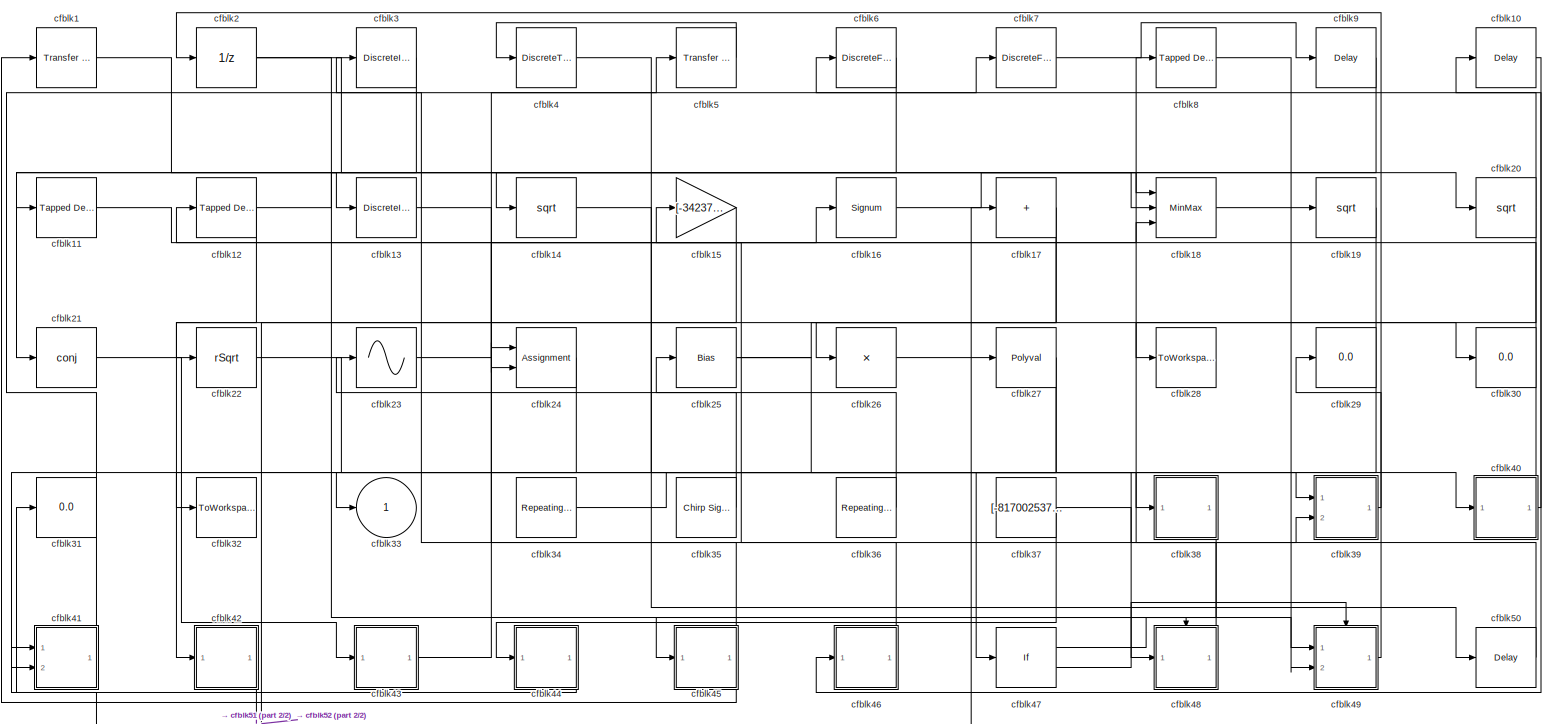
[diagram: root canvas - part 1/2, most of the canvas]
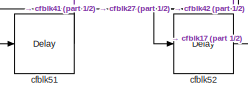
[diagram: root canvas - part 2/2, bottom left region]
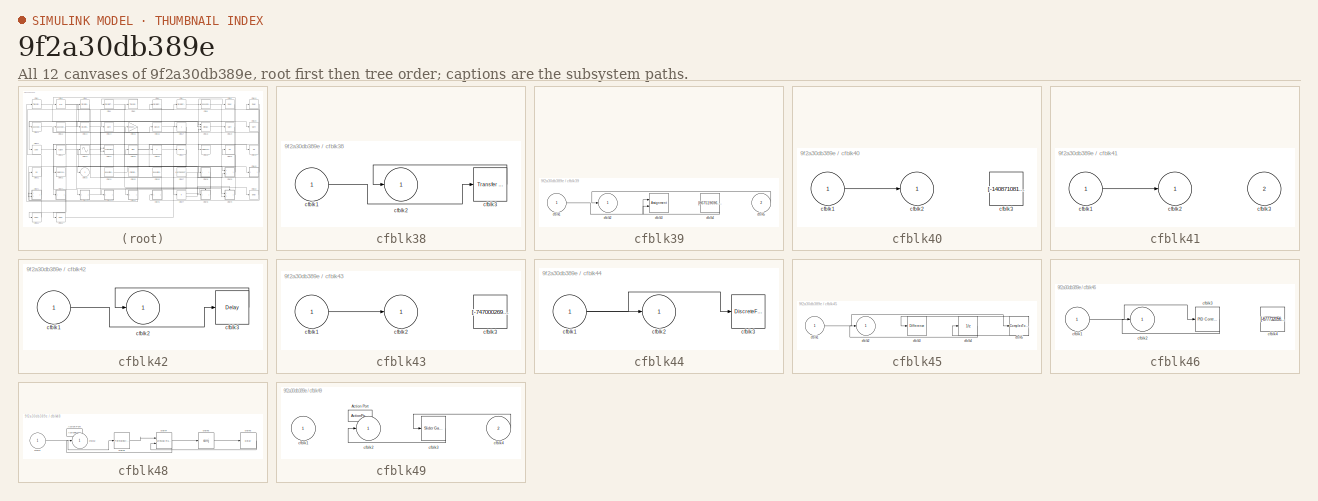
[diagram: thumbnail index - all 12 canvases of the model, root first then tree order]
MODEL slx_9f2a30db389e
KIND model
CONFIG AbsTol = auto
CONFIG EnableMultiTasking = off
CONFIG FixedStep = auto
CONFIG MaxStep = auto
CONFIG MinStep = auto
CONFIG RelTol = 1e-3
CONFIG SampleTimeConstraint = Unconstrained
CONFIG SolverName = VariableStepAuto
CONFIG StartTime = 0.0
CONFIG StopTime = 10.0
BLOCK [Reference] cfblk1  REF=simulink/Discrete/Transfer Fcn
First Order
  Ports = [1, 1]
  SourceBlock = simulink/Discrete/Transfer Fcn\nFirst Order
  SourceProductBaseCode = SL
  SourceType = First Order Transfer Fcn
BLOCK [Delay] cfblk10
  InputPortMap = u0
  Ports = [1, 1]
  SampleTime = 1
BLOCK [Reference] cfblk11  REF=simulink/Discrete/Tapped Delay
  Ports = [1, 1]
  SourceBlock = simulink/Discrete/Tapped Delay
  SourceProductBaseCode = SL
  SourceType = Tapped Delay Line
BLOCK [Reference] cfblk12  REF=simulink/Discrete/Tapped Delay
  Ports = [1, 1]
  SourceBlock = simulink/Discrete/Tapped Delay
  SourceProductBaseCode = SL
  SourceType = Tapped Delay Line
BLOCK [DiscreteIntegrator] cfblk13
  ICPrevOutput = DiscIntNeverNeededParam
  ICPrevScaledInput = DiscIntNeverNeededParam
  InitialConditionSetting = Auto
  Ports = [1, 1]
BLOCK [Sqrt] cfblk14
BLOCK [Gain] cfblk15
  Gain = [-342371570.486395]
BLOCK [Signum] cfblk16
BLOCK [Sum] cfblk17
  IconShape = rectangular
  Inputs = +
  Ports = [1, 1]
BLOCK [MinMax] cfblk18
  Function = max
  Inputs = 3
  Ports = [3, 1]
BLOCK [Sqrt] cfblk19
BLOCK [UnitDelay] cfblk2
  HasFrameUpgradeWarning = on
BLOCK [Sqrt] cfblk20
BLOCK [Math] cfblk21
  Operator = conj
  Ports = [1, 1]
BLOCK [Sqrt] cfblk22
  AlgorithmType = Newton-Raphson
  Operator = rSqrt
BLOCK [Sin] cfblk23
  Ports = [1, 1]
  SampleTime = 0
  TimeSource = Use external signal
BLOCK [Assignment] cfblk24
  DiagnosticForDimensions = Warning
  IndexOptions = Index vector (dialog)
  Indices = 1
  OutputSizes = 1
  Ports = [2, 1]
BLOCK [Bias] cfblk25
  Bias = [-530346170.504191]
  SaturateOnIntegerOverflow = off
BLOCK [Product] cfblk26
  Inputs = *
  Ports = [1, 1]
BLOCK [Polyval] cfblk27
  Coefs = [ +2.081618890e-019, -1.441693666e-014, +4.719686976e-010, -8.536869453e-006, +1.621573104e-001, -8.087801117e+001 ]
BLOCK [ToWorkspace] cfblk28
  FixptAsFi = on
  MaxDataPoints = inf
  Ports = [1]
  SampleTime = -1
  SaveFormat = Timeseries
  VariableName = tzwcjjr
BLOCK [Display] cfblk29
  Decimation = 1
  Ports = [1]
BLOCK [DiscreteIntegrator] cfblk3
  ICPrevOutput = DiscIntNeverNeededParam
  ICPrevScaledInput = DiscIntNeverNeededParam
  InitialConditionSetting = Auto
  Ports = [1, 1]
BLOCK [Display] cfblk30
  Decimation = 1
  Ports = [1]
BLOCK [Display] cfblk31
  Decimation = 1
  Ports = [1]
BLOCK [ToWorkspace] cfblk32
  FixptAsFi = on
  MaxDataPoints = inf
  Ports = [1]
  SampleTime = -1
  SaveFormat = Timeseries
  VariableName = pujfcuf
BLOCK [Outport] cfblk33
BLOCK [Reference] cfblk34  REF=simulink/Sources/Repeating
Sequence
  Ports = [0, 1]
  SourceBlock = simulink/Sources/Repeating\nSequence
  SourceProductBaseCode = SL
  SourceType = Repeating table
BLOCK [Reference] cfblk35  REF=simulink/Sources/Chirp Signal
  Ports = [0, 1]
  SourceBlock = simulink/Sources/Chirp Signal
  SourceProductBaseCode = SL
  SourceType = chirp
BLOCK [Reference] cfblk36  REF=simulink/Sources/Repeating
Sequence
Interpolated
  Ports = [0, 1]
  SourceBlock = simulink/Sources/Repeating\nSequence\nInterpolated
  SourceProductBaseCode = SL
  SourceType = Repeating Sequence Interpolated
BLOCK [Constant] cfblk37
  SampleTime = 1
  Value = [-817002537.321176]
BLOCK [SubSystem] cfblk38
  Ports = [1, 1]
  RequestExecContextInheritance = off
BLOCK [Inport] cfblk38/cfblk1
BLOCK [Outport] cfblk38/cfblk2
BLOCK [Reference] cfblk38/cfblk3  REF=simulink/Discrete/Transfer Fcn
First Order
  Ports = [1, 1]
  SourceBlock = simulink/Discrete/Transfer Fcn\nFirst Order
  SourceProductBaseCode = SL
  SourceType = First Order Transfer Fcn
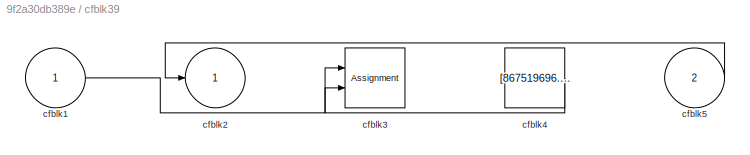
BLOCK [SubSystem] cfblk39
  Ports = [2, 1]
  RequestExecContextInheritance = off
BLOCK [Inport] cfblk39/cfblk1
BLOCK [Outport] cfblk39/cfblk2
BLOCK [Assignment] cfblk39/cfblk3
  DiagnosticForDimensions = Warning
  IndexOptions = Index vector (dialog)
  Indices = 1
  OutputSizes = 1
  Ports = [2, 1]
BLOCK [Constant] cfblk39/cfblk4
  SampleTime = 1
  Value = [867519696.770665]
BLOCK [Inport] cfblk39/cfblk5
  Port = 2
BLOCK [DiscreteTransferFcn] cfblk4
  InputPortMap = u0
  Ports = [1, 1]
  SampleTime = 1
BLOCK [SubSystem] cfblk40
  Ports = [1, 1]
  RequestExecContextInheritance = off
BLOCK [Inport] cfblk40/cfblk1
BLOCK [Outport] cfblk40/cfblk2
BLOCK [Constant] cfblk40/cfblk3
  SampleTime = 1
  Value = [-140871081.496294]
BLOCK [SubSystem] cfblk41
  Ports = [2, 1]
  RequestExecContextInheritance = off
BLOCK [Inport] cfblk41/cfblk1
BLOCK [Outport] cfblk41/cfblk2
BLOCK [Inport] cfblk41/cfblk3
  Port = 2
BLOCK [SubSystem] cfblk42
  Ports = [1, 1]
  RequestExecContextInheritance = off
BLOCK [Inport] cfblk42/cfblk1
BLOCK [Outport] cfblk42/cfblk2
BLOCK [Delay] cfblk42/cfblk3
  InputPortMap = u0
  Ports = [1, 1]
  SampleTime = 1
BLOCK [SubSystem] cfblk43
  Ports = [1, 1]
  RequestExecContextInheritance = off
BLOCK [Inport] cfblk43/cfblk1
BLOCK [Outport] cfblk43/cfblk2
BLOCK [Constant] cfblk43/cfblk3
  SampleTime = 1
  Value = [-747000269.341394]
BLOCK [SubSystem] cfblk44
  Ports = [1, 1]
  RequestExecContextInheritance = off
BLOCK [Inport] cfblk44/cfblk1
BLOCK [Outport] cfblk44/cfblk2
BLOCK [DiscreteFilter] cfblk44/cfblk3
  InputPortMap = u0
  Ports = [1, 1]
  SampleTime = 1
BLOCK [SubSystem] cfblk45
  Ports = [1, 1]
  RequestExecContextInheritance = off
BLOCK [Inport] cfblk45/cfblk1
BLOCK [Outport] cfblk45/cfblk2
BLOCK [Reference] cfblk45/cfblk3  REF=simulink/Discrete/Difference
  Ports = [1, 1]
  SourceBlock = simulink/Discrete/Difference
  SourceProductBaseCode = SL
  SourceType = Difference
BLOCK [UnitDelay] cfblk45/cfblk4
  HasFrameUpgradeWarning = on
BLOCK [ComplexToMagnitudeAngle] cfblk45/cfblk5
  Ports = [1, 2]
BLOCK [SubSystem] cfblk46
  Ports = [1, 1]
  RequestExecContextInheritance = off
BLOCK [Inport] cfblk46/cfblk1
BLOCK [Outport] cfblk46/cfblk2
BLOCK [Reference] cfblk46/cfblk3  REF=slpidlib/PID Controller
  Ports = [1, 1]
  SourceBlock = slpidlib/PID Controller
  SourceProductBaseCode = SL
  SourceType = PID 1dof
BLOCK [Constant] cfblk46/cfblk4
  SampleTime = 1
  Value = [-677732056.301278]
BLOCK [If] cfblk47
  IfExpression = u1 >= 0
  Ports = [1, 2]
  SampleTime = 1
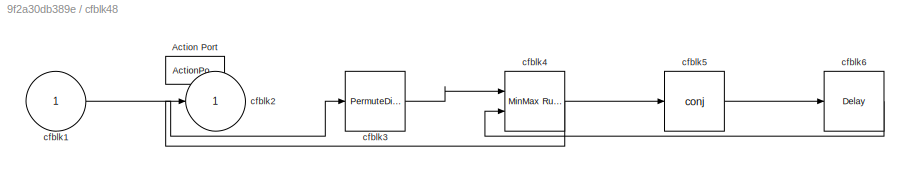
BLOCK [SubSystem] cfblk48
  Ports = [1, 1, 0, 0, 0, 0, 0, 1]
  RequestExecContextInheritance = off
  TreatAsAtomicUnit = on
BLOCK [ActionPort] cfblk48/Action Port
  ActionPortLabel = if(u1 >= 0)
BLOCK [Inport] cfblk48/cfblk1
BLOCK [Outport] cfblk48/cfblk2
BLOCK [PermuteDimensions] cfblk48/cfblk3
BLOCK [Reference] cfblk48/cfblk4  REF=simulink/Math
Operations/MinMax
Running
Resettable
  Ports = [2, 1]
  SourceBlock = simulink/Math\nOperations/MinMax\nRunning\nResettable
  SourceProductBaseCode = SL
  SourceType = MinMax Running Resettable
BLOCK [Math] cfblk48/cfblk5
  Operator = conj
  Ports = [1, 1]
BLOCK [Delay] cfblk48/cfblk6
  InputPortMap = u0
  Ports = [1, 1]
BLOCK [SubSystem] cfblk49
  Ports = [2, 1, 0, 0, 0, 0, 0, 1]
  RequestExecContextInheritance = off
  TreatAsAtomicUnit = on
BLOCK [ActionPort] cfblk49/Action Port
  ActionPortLabel = else
BLOCK [Inport] cfblk49/cfblk1
BLOCK [Outport] cfblk49/cfblk2
BLOCK [Reference] cfblk49/cfblk3  REF=simulink/Math
Operations/Slider
Gain
  Ports = [1, 1]
  SourceBlock = simulink/Math\nOperations/Slider\nGain
  SourceProductBaseCode = SL
  SourceType = Slider Gain
BLOCK [Inport] cfblk49/cfblk4
  Port = 2
BLOCK [Reference] cfblk5  REF=simulink/Discrete/Transfer Fcn
Lead or Lag
  Ports = [1, 1]
  SourceBlock = simulink/Discrete/Transfer Fcn\nLead or Lag
  SourceProductBaseCode = SL
  SourceType = Lead or Lag Compensator
BLOCK [Delay] cfblk50
  InputPortMap = u0
  Ports = [1, 1]
  SampleTime = 1
BLOCK [Delay] cfblk51
  InputPortMap = u0
  Ports = [1, 1]
  SampleTime = 1
BLOCK [Delay] cfblk52
  InputPortMap = u0
  Ports = [1, 1]
  SampleTime = 1
BLOCK [DiscreteFilter] cfblk6
  InputPortMap = u0
  Ports = [1, 1]
  SampleTime = 1
BLOCK [DiscreteFir] cfblk7
  InputPortMap = u0
  OutputPortMap = o0
  Ports = [1, 1]
  SampleTime = 1
BLOCK [Reference] cfblk8  REF=simulink/Discrete/Tapped Delay
  Ports = [1, 1]
  SourceBlock = simulink/Discrete/Tapped Delay
  SourceProductBaseCode = SL
  SourceType = Tapped Delay Line
BLOCK [Delay] cfblk9
  InputPortMap = u0
  Ports = [1, 1]
  SampleTime = 1
LINE cfblk10:1 -> cfblk46:1
LINE cfblk11:1 -> cfblk18:3
NET cfblk12:1 -> cfblk20:1, cfblk22:1
LINE cfblk13:1 -> cfblk24:2
LINE cfblk14:1 -> cfblk50:1
LINE cfblk15:1 -> cfblk42:1
LINE cfblk16:1 -> cfblk18:1
NET cfblk17:1 -> cfblk26:1, cfblk32:1
LINE cfblk18:1 -> cfblk49:1
LINE cfblk19:1 -> cfblk33:1
LINE cfblk1:1 -> cfblk13:1
NET cfblk20:1 -> cfblk28:1, cfblk6:1
LINE cfblk21:1 -> cfblk43:1
LINE cfblk22:1 -> cfblk48:1
LINE cfblk23:1 -> cfblk7:1
LINE cfblk24:1 -> cfblk41:2
NET cfblk25:1 -> cfblk30:1, cfblk38:1
LINE cfblk26:1 -> cfblk27:1
NET cfblk27:1 -> cfblk47:1, cfblk52:1
NET cfblk2:1 -> cfblk18:2, cfblk49:2
LINE cfblk34:1 -> cfblk39:1
LINE cfblk35:1 -> cfblk25:1
LINE cfblk36:1 -> cfblk23:1
NET cfblk37:1 -> cfblk39:2, cfblk44:1
LINE cfblk38/cfblk1:1 -> cfblk38/cfblk3:1
LINE cfblk38/cfblk3:1 -> cfblk38/cfblk2:1
LINE cfblk38:1 -> cfblk45:1
LINE cfblk39/cfblk1:1 -> cfblk39/cfblk3:2
LINE cfblk39/cfblk4:1 -> cfblk39/cfblk3:1
LINE cfblk39/cfblk5:1 -> cfblk39/cfblk2:1
LINE cfblk39:1 -> cfblk2:1
LINE cfblk3:1 -> cfblk11:1
LINE cfblk40/cfblk1:1 -> cfblk40/cfblk2:1
NET cfblk40:1 -> cfblk10:1, cfblk12:1
LINE cfblk41/cfblk1:1 -> cfblk41/cfblk2:1
LINE cfblk41:1 -> cfblk5:1
LINE cfblk42/cfblk1:1 -> cfblk42/cfblk3:1
LINE cfblk42/cfblk3:1 -> cfblk42/cfblk2:1
LINE cfblk42:1 -> cfblk51:1
LINE cfblk43/cfblk1:1 -> cfblk43/cfblk2:1
LINE cfblk43:1 -> cfblk16:1
NET cfblk44/cfblk1:1 -> cfblk44/cfblk2:1, cfblk44/cfblk3:1
LINE cfblk44:1 -> cfblk31:1
LINE cfblk45/cfblk1:1 -> cfblk45/cfblk5:1
LINE cfblk45/cfblk4:1 -> cfblk45/cfblk2:1
LINE cfblk45/cfblk5:1 -> cfblk45/cfblk3:1
LINE cfblk45/cfblk5:2 -> cfblk45/cfblk4:1
NET cfblk45:1 -> cfblk1:1, cfblk3:1
LINE cfblk46/cfblk1:1 -> cfblk46/cfblk3:1
LINE cfblk46/cfblk3:1 -> cfblk46/cfblk2:1
LINE cfblk46:1 -> cfblk15:1
LINE cfblk47:1 -> cfblk48:ifaction
LINE cfblk47:2 -> cfblk49:ifaction
LINE cfblk48/cfblk1:1 -> cfblk48/cfblk3:1
LINE cfblk48/cfblk3:1 -> cfblk48/cfblk4:1
NET cfblk48/cfblk4:1 -> cfblk48/cfblk2:1, cfblk48/cfblk5:1
LINE cfblk48/cfblk5:1 -> cfblk48/cfblk6:1
LINE cfblk48/cfblk6:1 -> cfblk48/cfblk4:2
LINE cfblk48:1 -> cfblk8:1
LINE cfblk49/cfblk3:1 -> cfblk49/cfblk2:1
LINE cfblk49/cfblk4:1 -> cfblk49/cfblk3:1
LINE cfblk49:1 -> cfblk29:1
LINE cfblk4:1 -> cfblk40:1
LINE cfblk50:1 -> cfblk24:1
LINE cfblk51:1 -> cfblk41:1
LINE cfblk52:1 -> cfblk17:1
LINE cfblk5:1 -> cfblk4:1
LINE cfblk6:1 -> cfblk14:1
LINE cfblk7:1 -> cfblk9:1
LINE cfblk8:1 -> cfblk19:1
LINE cfblk9:1 -> cfblk21:1
note: NET lines group one-source signal fan-out (src -> all destinations, sorted); 1:1 wires keep LINE
